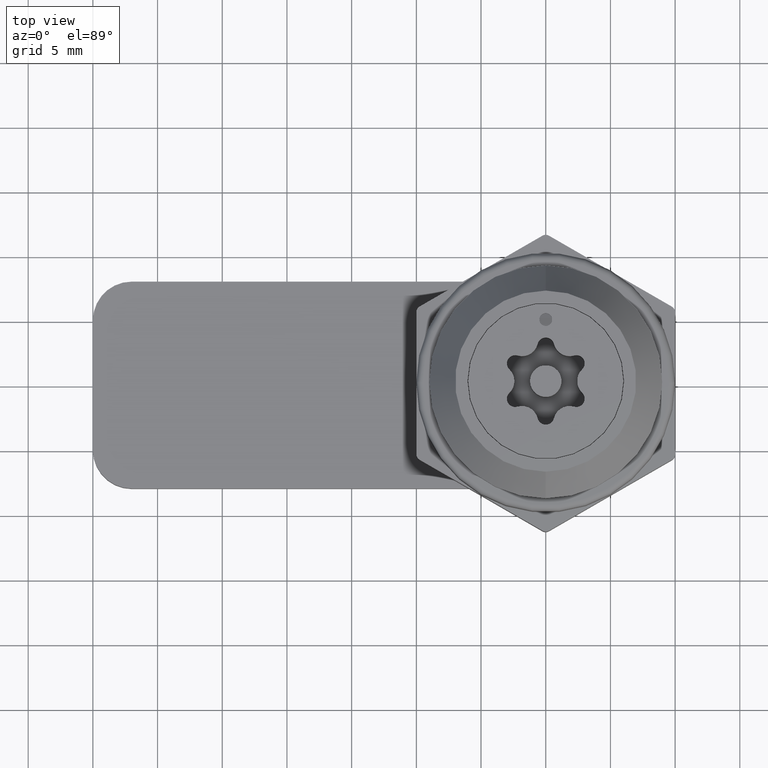
[diagram: clean part render]
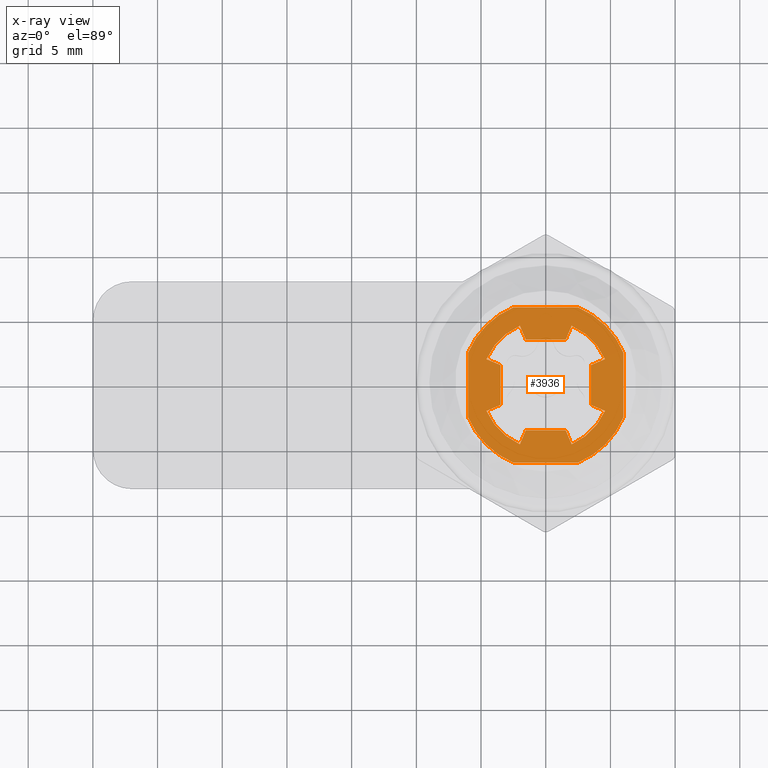
[diagram: x-ray — body ghosted, one internal face saturated and labeled with its STEP entity id]
A machine part, top view, then the same camera in x-ray: the body is ghosted and one INTERNAL B-rep face — a face not visible from any outside direction — is saturated and labeled: STEP entity #3936.
In plain terms, the highlighted planar face has unit normal (0, 0, -1).
Its self-contained STEP definition (entity closure, byte-faithful):
#12 = VERTEX_POINT ( 'NONE', #3643 ) ;
#28 = EDGE_LOOP ( 'NONE', ( #3016, #1404, #3485, #5372, #4063, #5257, #3721, #4203, #4173, #1969, #2329, #2371, #4078, #2750, #5407, #4365 ) ) ;
#30 = VERTEX_POINT ( 'NONE', #4689 ) ;
#42 = CARTESIAN_POINT ( 'NONE',  ( -4.582575689512523800, 2.000000005443319600, -16.04999999999999700 ) ) ;
#88 = VERTEX_POINT ( 'NONE', #4788 ) ;
#164 = VECTOR ( 'NONE', #4957, 1000.000000000000000 ) ;
#216 = VERTEX_POINT ( 'NONE', #2490 ) ;
#224 = CARTESIAN_POINT ( 'NONE',  ( 0.0000000000000000000, 0.0000000000000000000, -16.04999999999999700 ) ) ;
#308 = VECTOR ( 'NONE', #4884, 1000.000000000000000 ) ;
#395 = DIRECTION ( 'NONE',  ( 0.9210567992304843400, 0.3894282637294000900, -0.0000000000000000000 ) ) ;
#406 = VERTEX_POINT ( 'NONE', #4280 ) ;
#425 = DIRECTION ( 'NONE',  ( 0.0000000000000000000, 0.0000000000000000000, -1.000000000000000000 ) ) ;
#441 = DIRECTION ( 'NONE',  ( 0.3894282637294004800, -0.9210567992304842200, -0.0000000000000000000 ) ) ;
#455 = EDGE_CURVE ( 'NONE', #4981, #3594, #4742, .T. ) ;
#467 = FACE_OUTER_BOUND ( 'NONE', #3303, .T. ) ;
#469 = DIRECTION ( 'NONE',  ( 0.0000000000000000000, 0.0000000000000000000, -1.000000000000000000 ) ) ;
#503 = CIRCLE ( 'NONE', #1433, 5.000000026861087600 ) ;
#505 = LINE ( 'NONE', #3155, #3814 ) ;
#541 = LINE ( 'NONE', #856, #1415 ) ;
#542 = CARTESIAN_POINT ( 'NONE',  ( -4.500000000000000900, -3.499999999999998700, -16.04999999999999700 ) ) ;
#546 = VERTEX_POINT ( 'NONE', #2106 ) ;
#603 = CIRCLE ( 'NONE', #4046, 6.500000000000000900 ) ;
#604 = FACE_BOUND ( 'NONE', #28, .T. ) ;
#619 = EDGE_CURVE ( 'NONE', #5386, #5023, #2021, .T. ) ;
#634 = LINE ( 'NONE', #5430, #2681 ) ;
#658 = EDGE_CURVE ( 'NONE', #546, #3381, #603, .T. ) ;
#672 = CARTESIAN_POINT ( 'NONE',  ( -1.999999999999997100, -4.582575694955841600, -16.04999999999999700 ) ) ;
#705 = CARTESIAN_POINT ( 'NONE',  ( 4.582575700399159400, 1.999999994556682900, -16.04999999999999700 ) ) ;
#717 = DIRECTION ( 'NONE',  ( -1.000000000000000000, -3.144536643647771900E-015, 0.0000000000000000000 ) ) ;
#756 = LINE ( 'NONE', #1611, #4974 ) ;
#772 = EDGE_CURVE ( 'NONE', #5023, #5031, #4779, .T. ) ;
#817 = CARTESIAN_POINT ( 'NONE',  ( 1.500000000000000000, -3.400000000000000800, -16.04999999999999700 ) ) ;
#845 = VERTEX_POINT ( 'NONE', #672 ) ;
#856 = CARTESIAN_POINT ( 'NONE',  ( 3.400000005443318200, 1.499999994556683100, -16.04999999999999700 ) ) ;
#861 = CARTESIAN_POINT ( 'NONE',  ( -1.917527291464549100E-008, -1.618775469572342200E-008, -16.04999999999999700 ) ) ;
#868 = CARTESIAN_POINT ( 'NONE',  ( 3.400000005443318200, -1.500000005443317400, -16.04999999999999700 ) ) ;
#913 = CARTESIAN_POINT ( 'NONE',  ( -1.499999989113364200, 3.400000000000001700, -16.04999999999999700 ) ) ;
#929 = EDGE_CURVE ( 'NONE', #30, #12, #634, .T. ) ;
#1088 = CARTESIAN_POINT ( 'NONE',  ( -1.074443659043744500E-008, -2.461858971888886100E-008, -16.04999999999999700 ) ) ;
#1149 = AXIS2_PLACEMENT_3D ( 'NONE', #1088, #4115, #1521 ) ;
#1324 = VECTOR ( 'NONE', #2297, 1000.000000000000000 ) ;
#1328 = CARTESIAN_POINT ( 'NONE',  ( 1.542280602491273900, 3.499999999999998700, -16.04999999999999700 ) ) ;
#1404 = ORIENTED_EDGE ( 'NONE', *, *, #455, .F. ) ;
#1415 = VECTOR ( 'NONE', #2605, 1000.000000000000100 ) ;
#1420 = CARTESIAN_POINT ( 'NONE',  ( 3.923567784756246300E-014, -9.076307430920570500E-014, -16.04999999999999700 ) ) ;
#1433 = AXIS2_PLACEMENT_3D ( 'NONE', #861, #469, #2117 ) ;
#1441 = DIRECTION ( 'NONE',  ( 0.0000000000000000000, 0.0000000000000000000, -1.000000000000000000 ) ) ;
#1519 = AXIS2_PLACEMENT_3D ( 'NONE', #1696, #4738, #2147 ) ;
#1521 = DIRECTION ( 'NONE',  ( -1.000000000000000000, 0.0000000000000000000, 0.0000000000000000000 ) ) ;
#1538 = CARTESIAN_POINT ( 'NONE',  ( 2.499999999999987100, 6.000000000000006200, -16.04999999999999700 ) ) ;
#1571 = VERTEX_POINT ( 'NONE', #1664 ) ;
#1611 = CARTESIAN_POINT ( 'NONE',  ( -1.500000000000000000, -3.400000000000000800, -16.04999999999999700 ) ) ;
#1664 = CARTESIAN_POINT ( 'NONE',  ( -3.500000000000004400, 1.542280599349426900, -16.04999999999999700 ) ) ;
#1666 = EDGE_CURVE ( 'NONE', #5532, #88, #3892, .T. ) ;
#1696 = CARTESIAN_POINT ( 'NONE',  ( 0.0000000000000000000, 0.0000000000000000000, -16.04999999999999700 ) ) ;
#1727 = CARTESIAN_POINT ( 'NONE',  ( 1.999999999999999600, -4.582575694955840700, -16.04999999999999700 ) ) ;
#1788 = EDGE_CURVE ( 'NONE', #1571, #4291, #4772, .T. ) ;
#1823 = EDGE_CURVE ( 'NONE', #4880, #4975, #2057, .T. ) ;
#1837 = EDGE_CURVE ( 'NONE', #4291, #5386, #4215, .T. ) ;
#1905 = VERTEX_POINT ( 'NONE', #2954 ) ;
#1941 = EDGE_CURVE ( 'NONE', #216, #845, #756, .T. ) ;
#1969 = ORIENTED_EDGE ( 'NONE', *, *, #1837, .F. ) ;
#1975 = EDGE_CURVE ( 'NONE', #5221, #2054, #503, .T. ) ;
#2021 = LINE ( 'NONE', #913, #4182 ) ;
#2026 = DIRECTION ( 'NONE',  ( 0.0000000000000000000, 0.0000000000000000000, -1.000000000000000000 ) ) ;
#2054 = VERTEX_POINT ( 'NONE', #705 ) ;
#2057 = LINE ( 'NONE', #5065, #4364 ) ;
#2091 = EDGE_CURVE ( 'NONE', #1905, #5327, #4549, .T. ) ;
#2106 = CARTESIAN_POINT ( 'NONE',  ( -5.999999999999997300, 2.500000000000008400, -16.04999999999999700 ) ) ;
#2117 = DIRECTION ( 'NONE',  ( -1.000000000000000000, 0.0000000000000000000, 0.0000000000000000000 ) ) ;
#2147 = DIRECTION ( 'NONE',  ( -1.000000000000000000, 0.0000000000000000000, 0.0000000000000000000 ) ) ;
#2164 = CARTESIAN_POINT ( 'NONE',  ( 2.500000000000067100, -5.999999999999973400, -16.04999999999999700 ) ) ;
#2181 = ORIENTED_EDGE ( 'NONE', *, *, #3058, .F. ) ;
#2223 = DIRECTION ( 'NONE',  ( -1.000000000000000000, 0.0000000000000000000, 0.0000000000000000000 ) ) ;
#2260 = AXIS2_PLACEMENT_3D ( 'NONE', #3020, #425, #3451 ) ;
#2290 = CARTESIAN_POINT ( 'NONE',  ( 6.000000000000000000, 4.999999999999998200, -16.04999999999999700 ) ) ;
#2297 = DIRECTION ( 'NONE',  ( -3.469446951953614200E-016, -1.000000000000000000, 0.0000000000000000000 ) ) ;
#2317 = ORIENTED_EDGE ( 'NONE', *, *, #658, .T. ) ;
#2329 = ORIENTED_EDGE ( 'NONE', *, *, #1788, .F. ) ;
#2333 = VECTOR ( 'NONE', #3329, 1000.000000000000000 ) ;
#2337 = VECTOR ( 'NONE', #3471, 1000.000000000000000 ) ;
#2371 = ORIENTED_EDGE ( 'NONE', *, *, #3754, .F. ) ;
#2490 = CARTESIAN_POINT ( 'NONE',  ( -1.542280591604638000, -3.499999999999998700, -16.04999999999999700 ) ) ;
#2581 = CARTESIAN_POINT ( 'NONE',  ( -1.917526554207071900E-008, 1.618774862419125600E-008, -16.04999999999999700 ) ) ;
#2587 = EDGE_CURVE ( 'NONE', #546, #2775, #4785, .T. ) ;
#2605 = DIRECTION ( 'NONE',  ( -0.9210567992304842200, -0.3894282637294002600, -0.0000000000000000000 ) ) ;
#2614 = VECTOR ( 'NONE', #717, 1000.000000000000000 ) ;
#2681 = VECTOR ( 'NONE', #2827, 1000.000000000000000 ) ;
#2750 = ORIENTED_EDGE ( 'NONE', *, *, #4514, .F. ) ;
#2753 = LINE ( 'NONE', #3736, #2614 ) ;
#2768 = EDGE_CURVE ( 'NONE', #3594, #4623, #5127, .T. ) ;
#2771 = CARTESIAN_POINT ( 'NONE',  ( 1.542280591604638500, -3.499999999999998200, -16.04999999999999700 ) ) ;
#2775 = VERTEX_POINT ( 'NONE', #5165 ) ;
#2795 = ORIENTED_EDGE ( 'NONE', *, *, #1666, .T. ) ;
#2796 = ORIENTED_EDGE ( 'NONE', *, *, #2587, .F. ) ;
#2801 = VECTOR ( 'NONE', #5321, 1000.000000000000000 ) ;
#2827 = DIRECTION ( 'NONE',  ( 1.047444401652940000E-014, -1.000000000000000000, 0.0000000000000000000 ) ) ;
#2828 = DIRECTION ( 'NONE',  ( 0.0000000000000000000, 0.0000000000000000000, -1.000000000000000000 ) ) ;
#2851 = ORIENTED_EDGE ( 'NONE', *, *, #3733, .F. ) ;
#2889 = CARTESIAN_POINT ( 'NONE',  ( 4.500000000000000900, 3.499999999999998700, -16.04999999999999700 ) ) ;
#2929 = DIRECTION ( 'NONE',  ( -1.000000000000000000, 0.0000000000000000000, 0.0000000000000000000 ) ) ;
#2935 = AXIS2_PLACEMENT_3D ( 'NONE', #224, #2828, #4124 ) ;
#2954 = CARTESIAN_POINT ( 'NONE',  ( -4.582575689512523800, -1.999999994556680200, -16.04999999999999700 ) ) ;
#3016 = ORIENTED_EDGE ( 'NONE', *, *, #2768, .F. ) ;
#3020 = CARTESIAN_POINT ( 'NONE',  ( 0.0000000000000000000, 0.0000000000000000000, -16.04999999999999700 ) ) ;
#3058 = EDGE_CURVE ( 'NONE', #5532, #3381, #2753, .T. ) ;
#3072 = DIRECTION ( 'NONE',  ( -0.0000000000000000000, 0.0000000000000000000, -1.000000000000000000 ) ) ;
#3130 = CARTESIAN_POINT ( 'NONE',  ( 0.0000000000000000000, 0.0000000000000000000, -16.04999999999999700 ) ) ;
#3155 = CARTESIAN_POINT ( 'NONE',  ( -3.500000000000014200, 4.499999999999988500, -16.04999999999999700 ) ) ;
#3165 = CARTESIAN_POINT ( 'NONE',  ( -6.000000000000000000, -4.999999999999998200, -16.04999999999999700 ) ) ;
#3236 = CARTESIAN_POINT ( 'NONE',  ( 1.500000010886636000, 3.400000000000001700, -16.04999999999999700 ) ) ;
#3268 = VECTOR ( 'NONE', #395, 1000.000000000000100 ) ;
#3303 = EDGE_LOOP ( 'NONE', ( #4059, #3792, #2796, #2317, #2181, #2795, #2851, #5517 ) ) ;
#3329 = DIRECTION ( 'NONE',  ( -0.9210567992304842200, 0.3894282637294004300, 0.0000000000000000000 ) ) ;
#3342 = LINE ( 'NONE', #868, #2337 ) ;
#3381 = VERTEX_POINT ( 'NONE', #4143 ) ;
#3451 = DIRECTION ( 'NONE',  ( -1.000000000000000000, 0.0000000000000000000, 0.0000000000000000000 ) ) ;
#3471 = DIRECTION ( 'NONE',  ( 0.9210567992304848900, -0.3894282637293988200, 0.0000000000000000000 ) ) ;
#3485 = ORIENTED_EDGE ( 'NONE', *, *, #3646, .F. ) ;
#3594 = VERTEX_POINT ( 'NONE', #1727 ) ;
#3643 = CARTESIAN_POINT ( 'NONE',  ( 3.500000000000014700, -1.542280594746495000, -16.04999999999999700 ) ) ;
#3646 = EDGE_CURVE ( 'NONE', #12, #4981, #3342, .T. ) ;
#3673 = DIRECTION ( 'NONE',  ( 0.3894282637294002600, 0.9210567992304842200, 0.0000000000000000000 ) ) ;
#3695 = PLANE ( 'NONE',  #2935 ) ;
#3721 = ORIENTED_EDGE ( 'NONE', *, *, #5472, .F. ) ;
#3733 = EDGE_CURVE ( 'NONE', #406, #88, #3959, .T. ) ;
#3736 = CARTESIAN_POINT ( 'NONE',  ( -5.000000000000019500, 5.999999999999983100, -16.04999999999999700 ) ) ;
#3754 = EDGE_CURVE ( 'NONE', #5327, #1571, #505, .T. ) ;
#3763 = LINE ( 'NONE', #542, #308 ) ;
#3774 = DIRECTION ( 'NONE',  ( -0.3894282637294004300, -0.9210567992304843400, 0.0000000000000000000 ) ) ;
#3784 = DIRECTION ( 'NONE',  ( 1.000000000000000000, 1.012749932133403900E-014, 0.0000000000000000000 ) ) ;
#3792 = ORIENTED_EDGE ( 'NONE', *, *, #4936, .T. ) ;
#3814 = VECTOR ( 'NONE', #4440, 1000.000000000000000 ) ;
#3830 = VECTOR ( 'NONE', #3845, 999.9999999999998900 ) ;
#3845 = DIRECTION ( 'NONE',  ( -0.3894282637294004300, 0.9210567992304843400, -0.0000000000000000000 ) ) ;
#3865 = CARTESIAN_POINT ( 'NONE',  ( -3.399999994556682600, 1.500000005443319100, -16.04999999999999700 ) ) ;
#3892 = CIRCLE ( 'NONE', #4538, 6.500000000000000900 ) ;
#3936 = ADVANCED_FACE ( 'NONE', ( #604, #467 ), #3695, .T. ) ;
#3959 = LINE ( 'NONE', #2290, #2801 ) ;
#4019 = CARTESIAN_POINT ( 'NONE',  ( -3.499999999999993300, -1.542280588462783000, -16.04999999999999700 ) ) ;
#4046 = AXIS2_PLACEMENT_3D ( 'NONE', #3130, #5302, #2223 ) ;
#4051 = CARTESIAN_POINT ( 'NONE',  ( 2.000000010886636000, 4.582575694955841600, -16.04999999999999700 ) ) ;
#4059 = ORIENTED_EDGE ( 'NONE', *, *, #1823, .F. ) ;
#4063 = ORIENTED_EDGE ( 'NONE', *, *, #4224, .F. ) ;
#4078 = ORIENTED_EDGE ( 'NONE', *, *, #2091, .F. ) ;
#4110 = CIRCLE ( 'NONE', #1149, 4.999999973138916000 ) ;
#4115 = DIRECTION ( 'NONE',  ( 0.0000000000000000000, 0.0000000000000000000, -1.000000000000000000 ) ) ;
#4124 = DIRECTION ( 'NONE',  ( -1.000000000000000000, 0.0000000000000000000, -0.0000000000000000000 ) ) ;
#4143 = CARTESIAN_POINT ( 'NONE',  ( -2.500000000000025300, 5.999999999999990200, -16.04999999999999700 ) ) ;
#4173 = ORIENTED_EDGE ( 'NONE', *, *, #619, .F. ) ;
#4182 = VECTOR ( 'NONE', #441, 1000.000000000000100 ) ;
#4203 = ORIENTED_EDGE ( 'NONE', *, *, #772, .F. ) ;
#4204 = EDGE_CURVE ( 'NONE', #406, #4975, #4883, .T. ) ;
#4215 = CIRCLE ( 'NONE', #4734, 4.999999973138924900 ) ;
#4224 = EDGE_CURVE ( 'NONE', #2054, #30, #541, .T. ) ;
#4240 = VECTOR ( 'NONE', #3673, 1000.000000000000100 ) ;
#4280 = CARTESIAN_POINT ( 'NONE',  ( 5.999999999999997300, -2.500000000000008400, -16.04999999999999700 ) ) ;
#4291 = VERTEX_POINT ( 'NONE', #42 ) ;
#4355 = CARTESIAN_POINT ( 'NONE',  ( -1.542280580718001100, 3.499999999999997800, -16.04999999999999700 ) ) ;
#4364 = VECTOR ( 'NONE', #3784, 1000.000000000000000 ) ;
#4365 = ORIENTED_EDGE ( 'NONE', *, *, #5301, .F. ) ;
#4440 = DIRECTION ( 'NONE',  ( -3.491481338843133400E-015, 1.000000000000000000, 0.0000000000000000000 ) ) ;
#4514 = EDGE_CURVE ( 'NONE', #845, #1905, #4110, .T. ) ;
#4538 = AXIS2_PLACEMENT_3D ( 'NONE', #4871, #1441, #4797 ) ;
#4549 = LINE ( 'NONE', #4606, #3268 ) ;
#4606 = CARTESIAN_POINT ( 'NONE',  ( -3.399999994556683400, -1.499999994556680900, -16.04999999999999700 ) ) ;
#4623 = VERTEX_POINT ( 'NONE', #2771 ) ;
#4689 = CARTESIAN_POINT ( 'NONE',  ( 3.499999999999982200, 1.542280583859846800, -16.04999999999999700 ) ) ;
#4734 = AXIS2_PLACEMENT_3D ( 'NONE', #2581, #2026, #2929 ) ;
#4738 = DIRECTION ( 'NONE',  ( 0.0000000000000000000, 0.0000000000000000000, -1.000000000000000000 ) ) ;
#4742 = CIRCLE ( 'NONE', #5022, 5.000000003583020100 ) ;
#4772 = LINE ( 'NONE', #3865, #2333 ) ;
#4779 = LINE ( 'NONE', #2889, #164 ) ;
#4785 = LINE ( 'NONE', #3165, #1324 ) ;
#4788 = CARTESIAN_POINT ( 'NONE',  ( 5.999999999999999100, 2.500000000000004000, -16.04999999999999700 ) ) ;
#4797 = DIRECTION ( 'NONE',  ( -1.000000000000000000, 0.0000000000000000000, 0.0000000000000000000 ) ) ;
#4871 = CARTESIAN_POINT ( 'NONE',  ( 0.0000000000000000000, 0.0000000000000000000, -16.04999999999999700 ) ) ;
#4880 = VERTEX_POINT ( 'NONE', #5124 ) ;
#4881 = DIRECTION ( 'NONE',  ( 1.000000000000000000, 0.0000000000000000000, 0.0000000000000000000 ) ) ;
#4883 = CIRCLE ( 'NONE', #2260, 6.500000000000000900 ) ;
#4884 = DIRECTION ( 'NONE',  ( -1.000000000000000000, 0.0000000000000000000, 0.0000000000000000000 ) ) ;
#4906 = CARTESIAN_POINT ( 'NONE',  ( -1.999999989113364200, 4.582575694955842500, -16.04999999999999700 ) ) ;
#4936 = EDGE_CURVE ( 'NONE', #4880, #2775, #5546, .T. ) ;
#4957 = DIRECTION ( 'NONE',  ( 1.000000000000000000, 0.0000000000000000000, 0.0000000000000000000 ) ) ;
#4974 = VECTOR ( 'NONE', #3774, 999.9999999999998900 ) ;
#4975 = VERTEX_POINT ( 'NONE', #2164 ) ;
#4981 = VERTEX_POINT ( 'NONE', #5203 ) ;
#5022 = AXIS2_PLACEMENT_3D ( 'NONE', #1420, #3072, #4881 ) ;
#5023 = VERTEX_POINT ( 'NONE', #4355 ) ;
#5031 = VERTEX_POINT ( 'NONE', #1328 ) ;
#5065 = CARTESIAN_POINT ( 'NONE',  ( 5.000000000000060400, -5.999999999999948500, -16.04999999999999700 ) ) ;
#5124 = CARTESIAN_POINT ( 'NONE',  ( -2.499999999999945400, -6.000000000000024000, -16.04999999999999700 ) ) ;
#5127 = LINE ( 'NONE', #817, #3830 ) ;
#5165 = CARTESIAN_POINT ( 'NONE',  ( -5.999999999999999100, -2.500000000000004000, -16.04999999999999700 ) ) ;
#5203 = CARTESIAN_POINT ( 'NONE',  ( 4.582575697115177400, -2.000000004010066900, -16.04999999999999700 ) ) ;
#5221 = VERTEX_POINT ( 'NONE', #4051 ) ;
#5257 = ORIENTED_EDGE ( 'NONE', *, *, #1975, .F. ) ;
#5272 = LINE ( 'NONE', #3236, #4240 ) ;
#5301 = EDGE_CURVE ( 'NONE', #4623, #216, #3763, .T. ) ;
#5302 = DIRECTION ( 'NONE',  ( 0.0000000000000000000, 0.0000000000000000000, -1.000000000000000000 ) ) ;
#5321 = DIRECTION ( 'NONE',  ( 3.469446951953614200E-016, 1.000000000000000000, -0.0000000000000000000 ) ) ;
#5327 = VERTEX_POINT ( 'NONE', #4019 ) ;
#5372 = ORIENTED_EDGE ( 'NONE', *, *, #929, .F. ) ;
#5386 = VERTEX_POINT ( 'NONE', #4906 ) ;
#5407 = ORIENTED_EDGE ( 'NONE', *, *, #1941, .F. ) ;
#5430 = CARTESIAN_POINT ( 'NONE',  ( 3.500000000000046200, -4.499999999999964500, -16.04999999999999700 ) ) ;
#5472 = EDGE_CURVE ( 'NONE', #5031, #5221, #5272, .T. ) ;
#5517 = ORIENTED_EDGE ( 'NONE', *, *, #4204, .T. ) ;
#5532 = VERTEX_POINT ( 'NONE', #1538 ) ;
#5546 = CIRCLE ( 'NONE', #1519, 6.500000000000000900 ) ;